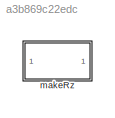
MODEL slx_a3b869c22edc
KIND library
CONFIG AbsTol = auto
CONFIG EnableMultiTasking = off
CONFIG FixedStep = auto
CONFIG MaxStep = auto
CONFIG MinStep = auto
CONFIG RelTol = 1e-3
CONFIG SampleTimeConstraint = Unconstrained
CONFIG Solver = VariableStepAuto
CONFIG SolverName = VariableStepAuto
CONFIG StartTime = 0.0
CONFIG StopTime = 10.0
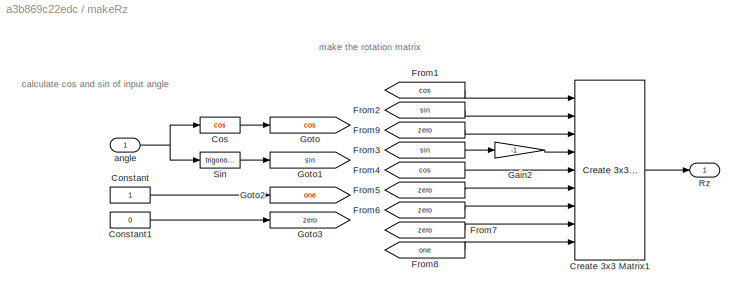
BLOCK [SubSystem] makeRz
  Ports = [1, 1]
  RequestExecContextInheritance = off
BLOCK [Constant] makeRz/Constant
  VectorParams1D = off
BLOCK [Constant] makeRz/Constant1
  Value = 0
  VectorParams1D = off
BLOCK [Trigonometry] makeRz/Cos
  Operator = cos
  Ports = [1, 1]
BLOCK [Reference] makeRz/Create 3x3 Matrix1  REF=sharedutil/Create 3x3 Matrix
  Ports = [9, 1]
  SourceBlock = sharedutil/Create 3x3 Matrix
  SourceProductBaseCode = AE,PW,MT,VE,VP
  SourceType = Create 3x3 Matrix
BLOCK [From] makeRz/From1
  GotoTag = cos
BLOCK [From] makeRz/From2
  GotoTag = sin
BLOCK [From] makeRz/From3
  GotoTag = sin
BLOCK [From] makeRz/From4
  GotoTag = cos
BLOCK [From] makeRz/From5
  GotoTag = zero
BLOCK [From] makeRz/From6
  GotoTag = zero
BLOCK [From] makeRz/From7
  GotoTag = zero
BLOCK [From] makeRz/From8
  GotoTag = one
BLOCK [From] makeRz/From9
  GotoTag = zero
BLOCK [Gain] makeRz/Gain2
  Gain = -1
BLOCK [Goto] makeRz/Goto
  GotoTag = cos
BLOCK [Goto] makeRz/Goto1
  GotoTag = sin
BLOCK [Goto] makeRz/Goto2
  GotoTag = one
BLOCK [Goto] makeRz/Goto3
  GotoTag = zero
BLOCK [Outport] makeRz/Rz
BLOCK [Trigonometry] makeRz/Sin
  Ports = [1, 1]
BLOCK [Inport] makeRz/angle
ANNOTATION makeRz: calculate cos and sin of input angle
ANNOTATION makeRz: make the rotation matrix
LINE makeRz/Constant1:1 -> makeRz/Goto3:1
LINE makeRz/Constant:1 -> makeRz/Goto2:1
LINE makeRz/Cos:1 -> makeRz/Goto:1
LINE makeRz/Create 3x3 Matrix1:1 -> makeRz/Rz:1
LINE makeRz/From1:1 -> makeRz/Create 3x3 Matrix1:1
LINE makeRz/From2:1 -> makeRz/Create 3x3 Matrix1:2
LINE makeRz/From3:1 -> makeRz/Gain2:1
LINE makeRz/From4:1 -> makeRz/Create 3x3 Matrix1:5
LINE makeRz/From5:1 -> makeRz/Create 3x3 Matrix1:6
LINE makeRz/From6:1 -> makeRz/Create 3x3 Matrix1:7
LINE makeRz/From7:1 -> makeRz/Create 3x3 Matrix1:8
LINE makeRz/From8:1 -> makeRz/Create 3x3 Matrix1:9
LINE makeRz/From9:1 -> makeRz/Create 3x3 Matrix1:3
LINE makeRz/Gain2:1 -> makeRz/Create 3x3 Matrix1:4
LINE makeRz/Sin:1 -> makeRz/Goto1:1
NET makeRz/angle:1 -> makeRz/Cos:1, makeRz/Sin:1
note: NET lines group one-source signal fan-out (src -> all destinations, sorted); 1:1 wires keep LINE
